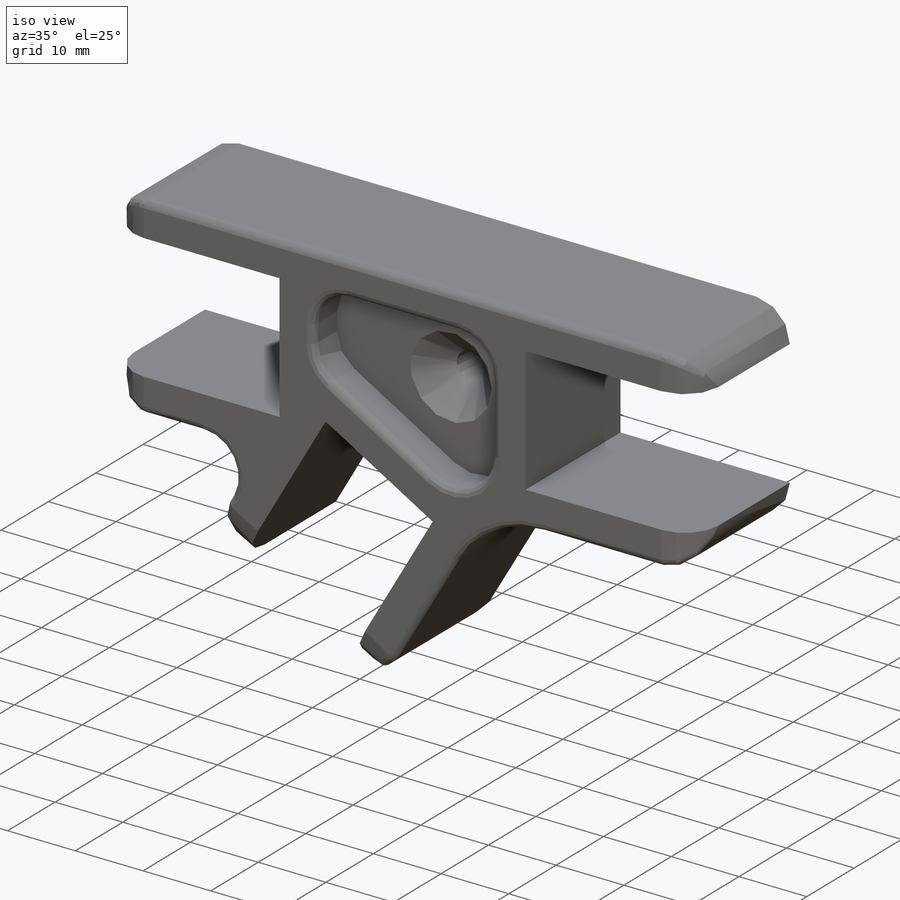
[diagram: iso view]
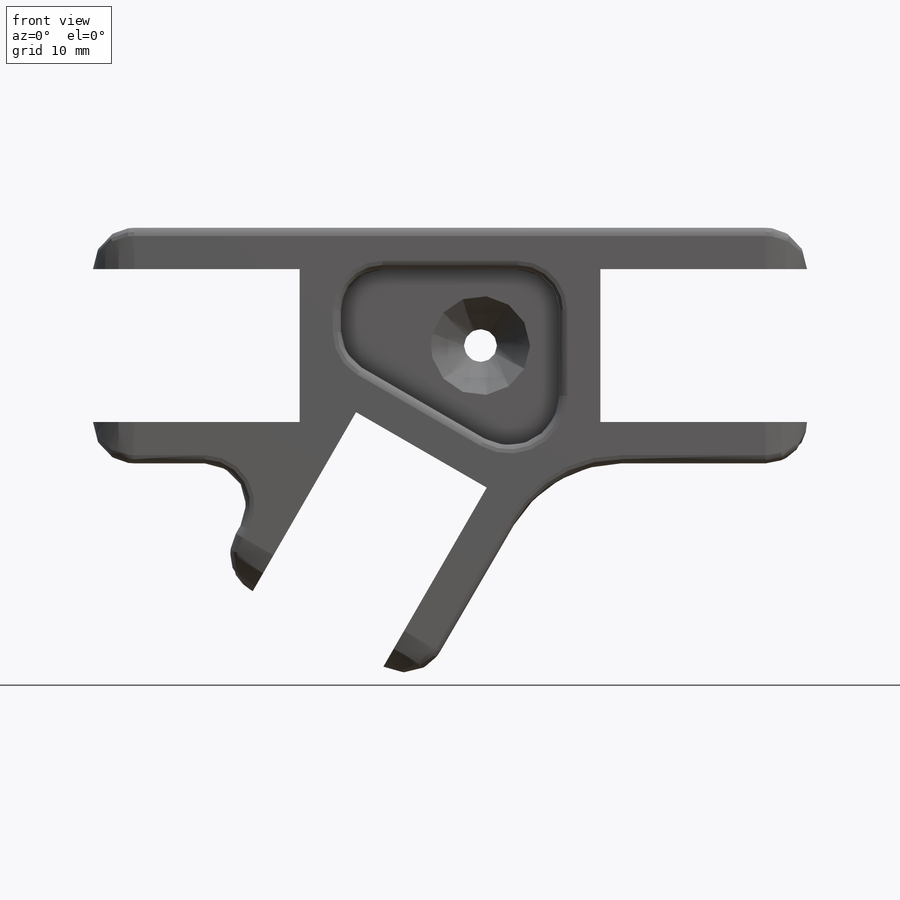
[diagram: front view]
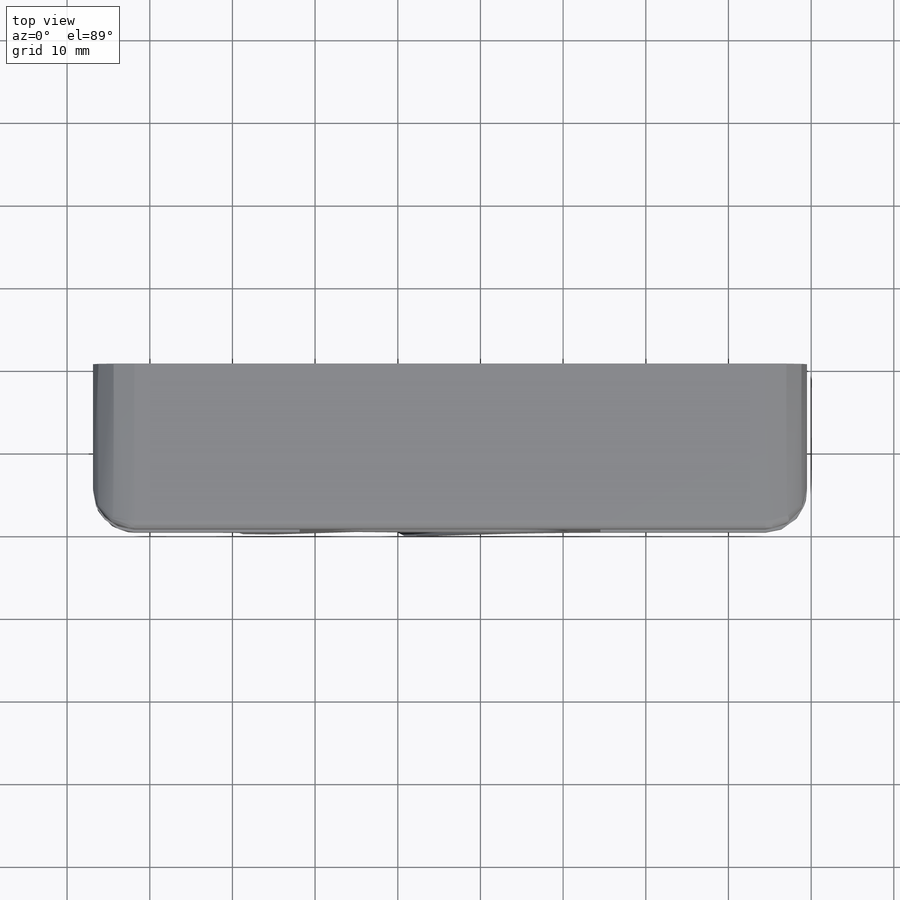
[diagram: top view]
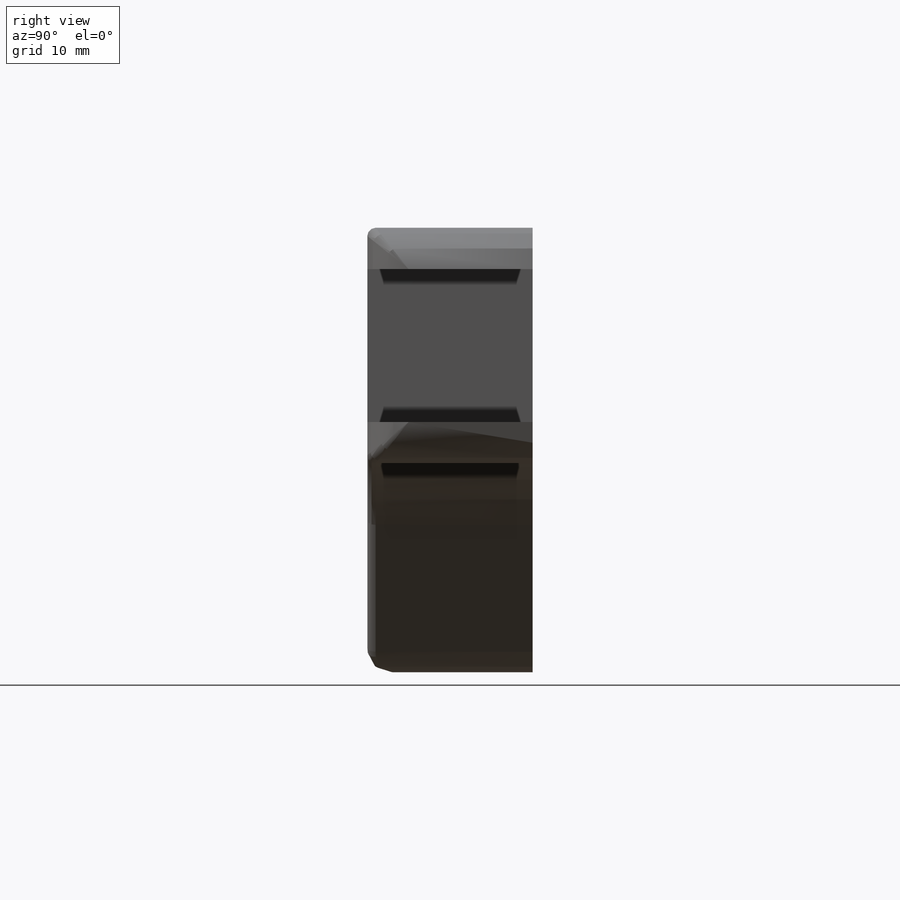
[diagram: right view]
SOLIDWORKS PART (.sldprt)
format: sldprt  version: not decoded by parser v0  size: 422,400 bytes
history: native  units: mm
features: sketch x5, plane x4, cut_extrude x2, fillet x2, material x1, extrude x1, cut_revolve x1 (+8 scaffold rows collapsed)
feature tree (24):
  scaffold x8  (default folders/planes/origin — collapsed)
  material  "Material <sin especificar>"
  plane  "Alzado"
  plane  "Planta"
  plane  "Vista lateral"
  sketch  "Croquis1"  dims[c1.D7=15.0mm c1.D12=10.0mm c2.D7=25.0mm c2.D9=5.0mm c2.D1=60.0mm c2.D2=60.0mm c2.D3=60.0mm c3.D3=90.0deg c3.D4=~20.413153mm c3.D5=60.0mm c4.D4=60.0mm c4.D5=~23.494658mm c5.D4=18.0mm c5.D5=18.0mm c5.D6=~24.262455mm c5.D7=60.0mm c6.D6=0.5mm c6.D7=60.0mm c6.D8=~22.814784mm c7.D7=0.5mm c7.D8=~24.663893mm c7.D9=79.0mm c8.D8=2.5mm c8.D9=79.0mm c8.D10=~27.082071mm c9.D9=5.0mm c9.D7=~0.143772mm c9.D8=5.0mm c9.D10=5.0mm c9.D11=5.0mm c9.D12=~6.687901mm c9.D13=48.0mm c9.D14=0.5mm c9.D15=0.5mm c9.D16=25.0mm c9.D17=45.5mm c9.D2=~55.631675mm c10.D2=120.0deg c10.D3=65.7238mm c11.D3=60.0deg c11.D5=9.0mm c11.D6=9.0mm c11.D7=0.5mm c11.D9=~10.940266mm c12.D7=~10.636942mm c12.D4=0.25mm c12.D5=9.0mm c12.D6=0.25mm c13.D7=9.0mm c13.D9=~43.807368mm c14.D9=120.0deg c15.D9=~16.783713mm c15.D10=25.0mm c15.D4=25.0mm c16.D10=5.0mm]
  extrude  "Saliente-Extruir1"  Depth=20mm
  sketch  "Croquis2"  dims[c1.D4=6.0mm c1.D6=5.0mm c1.D1=5.0mm c1.D2=5.0mm c1.D3=5.0mm c2.D1=5.0mm c2.D5=5.0mm]
  cut_extrude  "Cortar-Extruir1"  Depth=5mm
  sketch  "Croquis3"  dims[D1=4.0mm]
  cut_extrude  "Cortar-Extruir2"  [1 undecoded]
  sketch  "Croquis4"  dims[D1=~4.985477mm]
  plane  "Plano1"
  sketch  "Croquis5"  dims[c1.D1=2.0mm c1.D2=~6.38985mm c2.D2=45.0deg c2.D3=4.0mm]
  cut_revolve  "Cortar-Revolución1"  Angle=360deg
  fillet  "Redondeo1"  Radius=1mm
  fillet  "Redondeo2"  Radius=5mm
decode coverage: 10 of 11 modeling features carry decoded parameters
note: ~ marks probable driven/reference dimensions
note: 1 parameter value undecoded
note: suppression state not decoded; provenance and decode notes live in map.json
